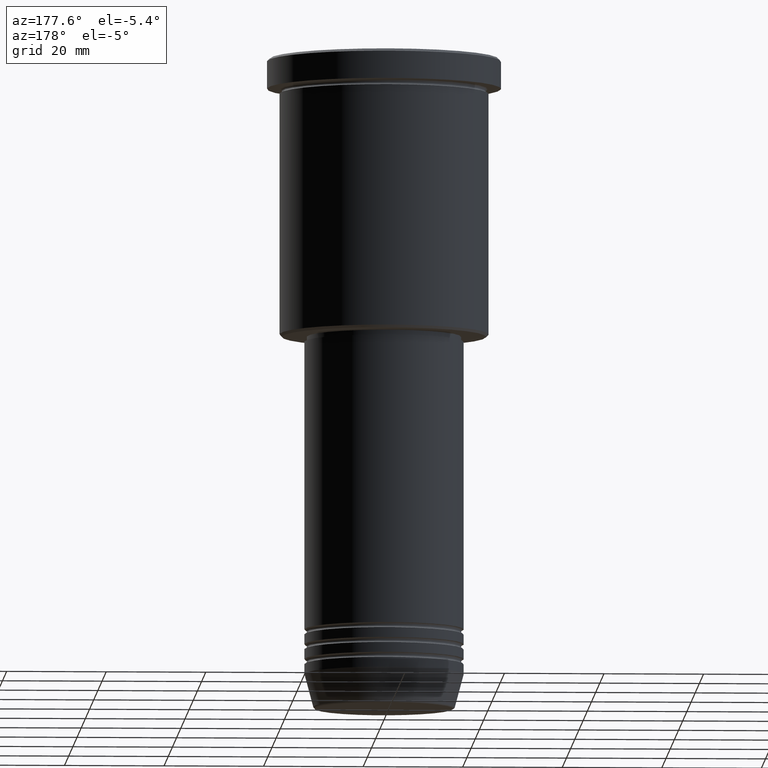
[diagram: clean part render]
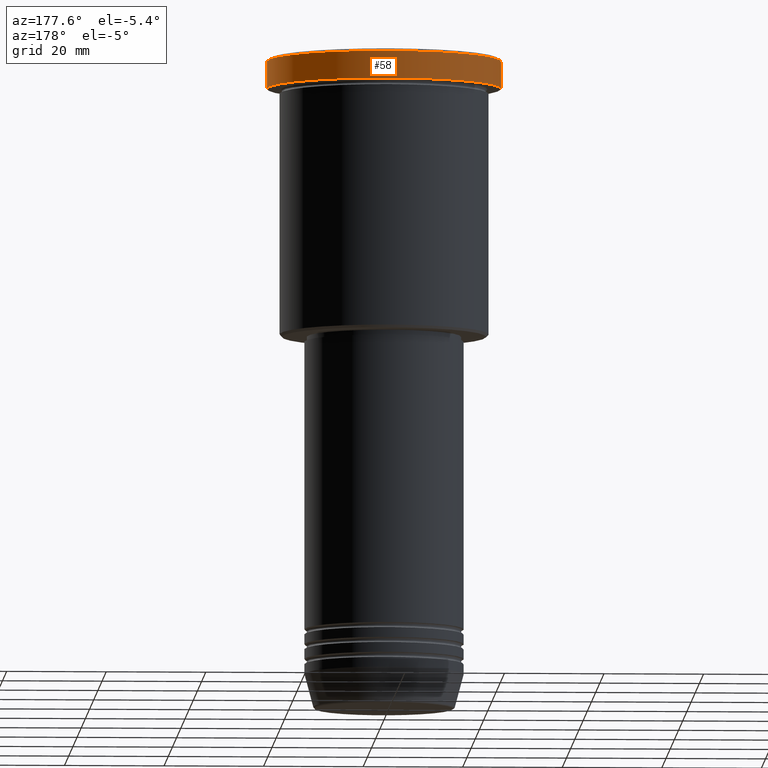
[diagram: same view with one face highlighted and labeled with its STEP entity id]
A machine part, auxiliary view. The second image highlights one B-rep face of the part: STEP entity #58.
In plain terms, the highlighted cylindrical surface (partial cylindrical patch) has radius 23.5 mm, axis along (-0, -0, 1).
Its self-contained STEP definition (entity closure, byte-faithful):
#1 = VERTEX_POINT ( 'NONE', #654 ) ;
#4 = CARTESIAN_POINT ( 'NONE',  ( 23.50000000000000000, 0.000000000000000000, -5.999999999999994671 ) ) ;
#58 = ADVANCED_FACE ( 'NONE', ( #1154 ), #1030, .T. ) ;
#88 = VERTEX_POINT ( 'NONE', #4 ) ;
#172 = DIRECTION ( 'NONE',  ( -0.000000000000000000, -0.000000000000000000, 1.000000000000000000 ) ) ;
#195 = LINE ( 'NONE', #927, #263 ) ;
#263 = VECTOR ( 'NONE', #490, 1000.000000000000000 ) ;
#272 = AXIS2_PLACEMENT_3D ( 'NONE', #804, #172, #900 ) ;
#276 = ORIENTED_EDGE ( 'NONE', *, *, #470, .T. ) ;
#307 = CARTESIAN_POINT ( 'NONE',  ( -23.50000000000000000, 2.877919977996280320E-15, -0.5000000000000143219 ) ) ;
#325 = CIRCLE ( 'NONE', #272, 23.50000000000000000 ) ;
#333 = CARTESIAN_POINT ( 'NONE',  ( -23.50000000000000000, 2.877919977996280320E-15, 0.000000000000000000 ) ) ;
#351 = ORIENTED_EDGE ( 'NONE', *, *, #1178, .F. ) ;
#374 = EDGE_CURVE ( 'NONE', #769, #731, #946, .T. ) ;
#411 = DIRECTION ( 'NONE',  ( -0.000000000000000000, -0.000000000000000000, 1.000000000000000000 ) ) ;
#451 = EDGE_LOOP ( 'NONE', ( #276, #1093, #903, #351 ) ) ;
#470 = EDGE_CURVE ( 'NONE', #88, #769, #325, .T. ) ;
#490 = DIRECTION ( 'NONE',  ( -0.000000000000000000, -0.000000000000000000, 1.000000000000000000 ) ) ;
#614 = DIRECTION ( 'NONE',  ( 0.000000000000000000, 0.000000000000000000, -1.000000000000000000 ) ) ;
#629 = CIRCLE ( 'NONE', #952, 23.50000000000000000 ) ;
#654 = CARTESIAN_POINT ( 'NONE',  ( 23.50000000000000000, 0.000000000000000000, -0.5000000000000143219 ) ) ;
#731 = VERTEX_POINT ( 'NONE', #307 ) ;
#769 = VERTEX_POINT ( 'NONE', #945 ) ;
#804 = CARTESIAN_POINT ( 'NONE',  ( 0.000000000000000000, 0.000000000000000000, -5.999999999999994671 ) ) ;
#848 = DIRECTION ( 'NONE',  ( 1.000000000000000000, 0.000000000000000000, 0.000000000000000000 ) ) ;
#900 = DIRECTION ( 'NONE',  ( 1.000000000000000000, 0.000000000000000000, 0.000000000000000000 ) ) ;
#903 = ORIENTED_EDGE ( 'NONE', *, *, #1012, .T. ) ;
#927 = CARTESIAN_POINT ( 'NONE',  ( 23.50000000000000000, 0.000000000000000000, 0.000000000000000000 ) ) ;
#942 = CARTESIAN_POINT ( 'NONE',  ( 0.000000000000000000, 0.000000000000000000, 0.000000000000000000 ) ) ;
#945 = CARTESIAN_POINT ( 'NONE',  ( -23.50000000000000000, 2.877919977996280320E-15, -5.999999999999994671 ) ) ;
#946 = LINE ( 'NONE', #333, #986 ) ;
#952 = AXIS2_PLACEMENT_3D ( 'NONE', #984, #614, #1169 ) ;
#984 = CARTESIAN_POINT ( 'NONE',  ( 0.000000000000000000, 0.000000000000000000, -0.5000000000000143219 ) ) ;
#986 = VECTOR ( 'NONE', #411, 1000.000000000000000 ) ;
#1012 = EDGE_CURVE ( 'NONE', #731, #1, #629, .T. ) ;
#1030 = CYLINDRICAL_SURFACE ( 'NONE', #1174, 23.50000000000000000 ) ;
#1050 = DIRECTION ( 'NONE',  ( -0.000000000000000000, -0.000000000000000000, 1.000000000000000000 ) ) ;
#1093 = ORIENTED_EDGE ( 'NONE', *, *, #374, .T. ) ;
#1154 = FACE_OUTER_BOUND ( 'NONE', #451, .T. ) ;
#1169 = DIRECTION ( 'NONE',  ( 1.000000000000000000, 0.000000000000000000, 0.000000000000000000 ) ) ;
#1174 = AXIS2_PLACEMENT_3D ( 'NONE', #942, #1050, #848 ) ;
#1178 = EDGE_CURVE ( 'NONE', #88, #1, #195, .T. ) ;